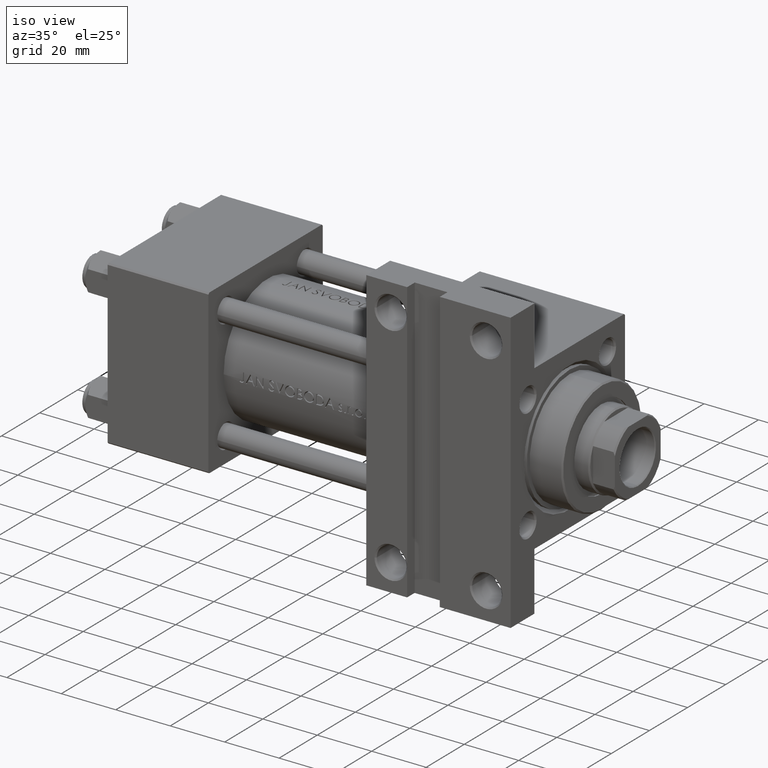
[diagram: clean part render]
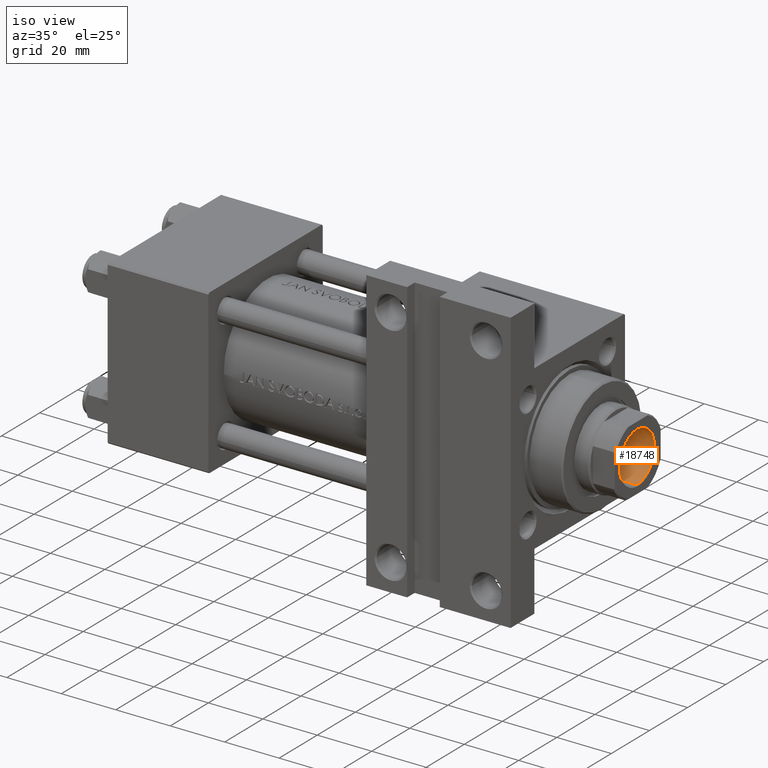
[diagram: same view with one face highlighted and labeled with its STEP entity id]
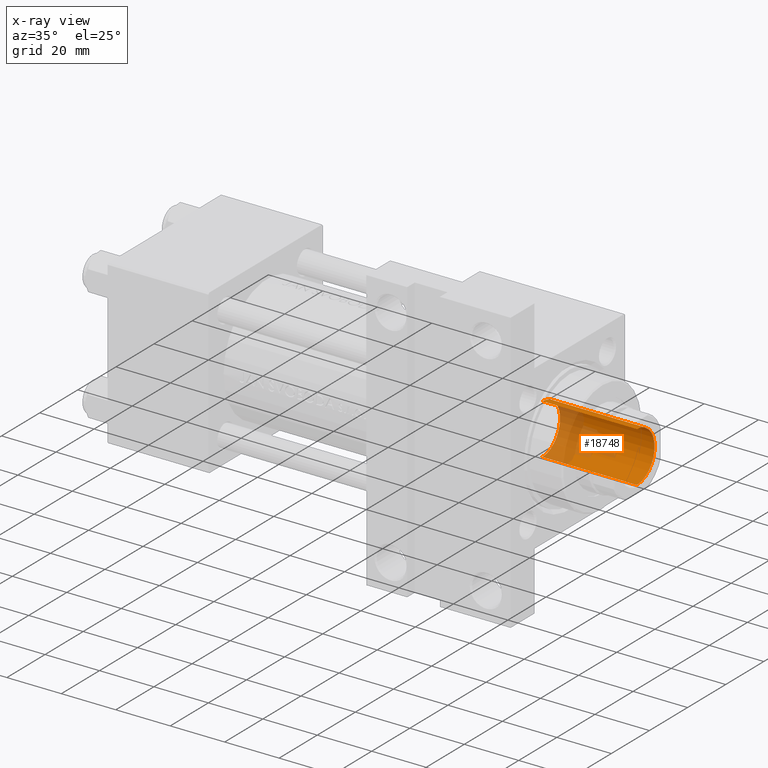
[diagram: x-ray of the same camera — body ghosted, the highlighted face saturated]
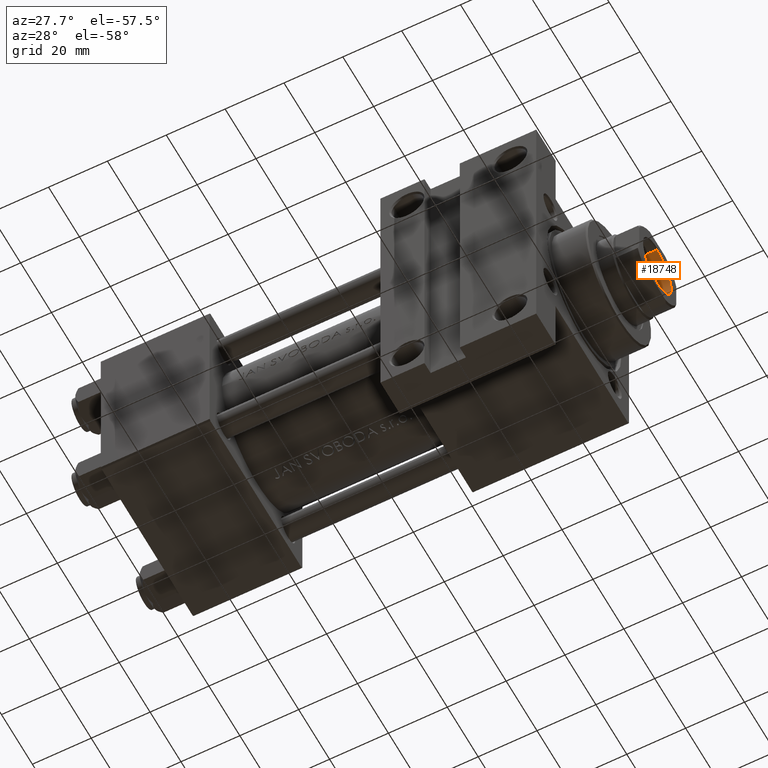
[diagram: same view with one face highlighted and labeled with its STEP entity id]
A machine part, iso view. The second image highlights one B-rep face of the part: STEP entity #18748.
The next image is the same camera in x-ray: the body ghosted, the highlighted face saturated — about 39% of this face is hidden behind the body in this view.
A second angle (auxiliary view) of the same face is appended — the face is thin or edge-on in the first view.
In plain terms, the highlighted cylindrical surface (edge-blend (fillet) strip) has radius 9.25 mm, axis along (1, 0, 0).
Its self-contained STEP definition (entity closure, byte-faithful):
#324 = CYLINDRICAL_SURFACE ( 'NONE', #15050, 9.249999999999994671 ) ;
#554 = DIRECTION ( 'NONE',  ( 1.000000000000000000, 0.000000000000000000, 0.000000000000000000 ) ) ;
#1398 = DIRECTION ( 'NONE',  ( 1.000000000000000000, 0.000000000000000000, 0.000000000000000000 ) ) ;
#3199 = AXIS2_PLACEMENT_3D ( 'NONE', #12720, #46266, #1398 ) ;
#6490 = EDGE_CURVE ( 'NONE', #12725, #43527, #31638, .T. ) ;
#7442 = ORIENTED_EDGE ( 'NONE', *, *, #21312, .T. ) ;
#9692 = CARTESIAN_POINT ( 'NONE',  ( -9.249999999999994671, 1.132798289211300909E-15, 135.7000000000000455 ) ) ;
#10212 = VECTOR ( 'NONE', #43523, 1000.000000000000000 ) ;
#11805 = DIRECTION ( 'NONE',  ( 1.000000000000000000, 0.000000000000000000, 0.000000000000000000 ) ) ;
#12720 = CARTESIAN_POINT ( 'NONE',  ( 0.000000000000000000, 0.000000000000000000, 135.7000000000000455 ) ) ;
#12725 = VERTEX_POINT ( 'NONE', #46599 ) ;
#13440 = LINE ( 'NONE', #21095, #10212 ) ;
#15050 = AXIS2_PLACEMENT_3D ( 'NONE', #45668, #15351, #554 ) ;
#15296 = EDGE_LOOP ( 'NONE', ( #19421, #47810, #7442, #35954 ) ) ;
#15351 = DIRECTION ( 'NONE',  ( -0.000000000000000000, -0.000000000000000000, 1.000000000000000000 ) ) ;
#18748 = ADVANCED_FACE ( 'NONE', ( #46146 ), #324, .F. ) ;
#19421 = ORIENTED_EDGE ( 'NONE', *, *, #6490, .F. ) ;
#21095 = CARTESIAN_POINT ( 'NONE',  ( 9.249999999999994671, 0.000000000000000000, 136.0000000000000000 ) ) ;
#21312 = EDGE_CURVE ( 'NONE', #47626, #46615, #44911, .T. ) ;
#25090 = DIRECTION ( 'NONE',  ( -0.000000000000000000, -0.000000000000000000, 1.000000000000000000 ) ) ;
#26148 = CARTESIAN_POINT ( 'NONE',  ( 9.249999999999994671, 0.000000000000000000, 135.7000000000000455 ) ) ;
#30567 = CARTESIAN_POINT ( 'NONE',  ( 0.000000000000000000, 0.000000000000000000, 101.0000000000000000 ) ) ;
#31638 = CIRCLE ( 'NONE', #43443, 9.249999999999992895 ) ;
#35954 = ORIENTED_EDGE ( 'NONE', *, *, #43831, .F. ) ;
#39398 = CARTESIAN_POINT ( 'NONE',  ( -9.249999999999994671, 1.132798289211300909E-15, 136.0000000000000000 ) ) ;
#39484 = VECTOR ( 'NONE', #25090, 1000.000000000000000 ) ;
#40110 = LINE ( 'NONE', #39398, #39484 ) ;
#43443 = AXIS2_PLACEMENT_3D ( 'NONE', #30567, #45595, #11805 ) ;
#43523 = DIRECTION ( 'NONE',  ( -0.000000000000000000, -0.000000000000000000, 1.000000000000000000 ) ) ;
#43527 = VERTEX_POINT ( 'NONE', #47765 ) ;
#43831 = EDGE_CURVE ( 'NONE', #43527, #46615, #13440, .T. ) ;
#44911 = CIRCLE ( 'NONE', #3199, 9.249999999999994671 ) ;
#45595 = DIRECTION ( 'NONE',  ( -0.000000000000000000, -0.000000000000000000, 1.000000000000000000 ) ) ;
#45668 = CARTESIAN_POINT ( 'NONE',  ( 0.000000000000000000, 0.000000000000000000, 136.0000000000000000 ) ) ;
#46146 = FACE_OUTER_BOUND ( 'NONE', #15296, .T. ) ;
#46266 = DIRECTION ( 'NONE',  ( 0.000000000000000000, 0.000000000000000000, 1.000000000000000000 ) ) ;
#46599 = CARTESIAN_POINT ( 'NONE',  ( -9.249999999999992895, 1.132798289211300712E-15, 101.0000000000000000 ) ) ;
#46615 = VERTEX_POINT ( 'NONE', #26148 ) ;
#46854 = EDGE_CURVE ( 'NONE', #12725, #47626, #40110, .T. ) ;
#47626 = VERTEX_POINT ( 'NONE', #9692 ) ;
#47765 = CARTESIAN_POINT ( 'NONE',  ( 9.249999999999992895, 0.000000000000000000, 101.0000000000000000 ) ) ;
#47810 = ORIENTED_EDGE ( 'NONE', *, *, #46854, .T. ) ;